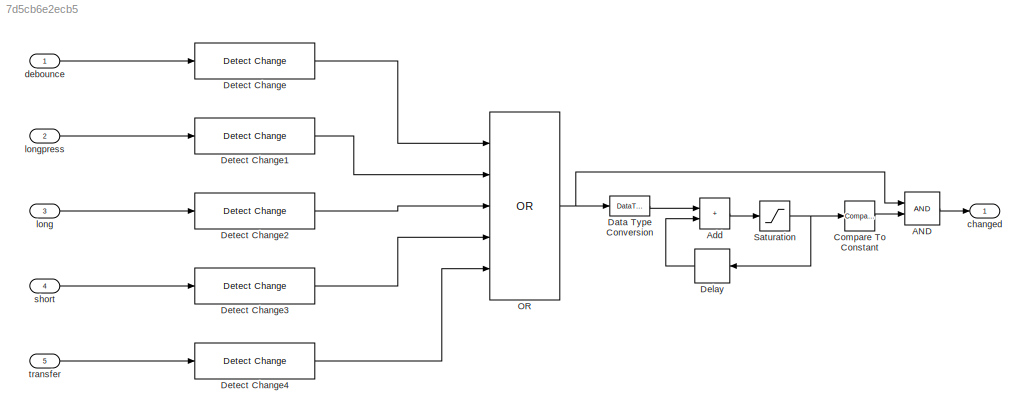
MODEL slx_7d5cb6e2ecb5
KIND model
BLOCK [Logic] AND
  AllPortsSameDT = off
  OutDataTypeStr = boolean
  Ports = [2, 1]
BLOCK [Sum] Add
  IconShape = rectangular
  Ports = [2, 1]
BLOCK [Reference] Compare To Constant  REF=simulink/Logic and Bit
Operations/Compare
To Constant
  Ports = [1, 1]
  SourceBlock = simulink/Logic and Bit\nOperations/Compare\nTo Constant
  SourceProductBaseCode = SL
  SourceType = Compare To Constant
BLOCK [DataTypeConversion] Data Type Conversion
  OutDataTypeStr = uint8
  RndMeth = Floor
  SaturateOnIntegerOverflow = off
BLOCK [Delay] Delay
  DelayLength = 1
  InitialCondition = 0
  InputPortMap = u0
  Ports = [1, 1]
BLOCK [Reference] Detect Change  REF=simulink/Logic and Bit
Operations/Detect
Change
  Ports = [1, 1]
  SourceBlock = simulink/Logic and Bit\nOperations/Detect\nChange
  SourceProductBaseCode = SL
  SourceType = Detect Change
BLOCK [Reference] Detect Change1  REF=simulink/Logic and Bit
Operations/Detect
Change
  Ports = [1, 1]
  SourceBlock = simulink/Logic and Bit\nOperations/Detect\nChange
  SourceProductBaseCode = SL
  SourceType = Detect Change
BLOCK [Reference] Detect Change2  REF=simulink/Logic and Bit
Operations/Detect
Change
  Ports = [1, 1]
  SourceBlock = simulink/Logic and Bit\nOperations/Detect\nChange
  SourceProductBaseCode = SL
  SourceType = Detect Change
BLOCK [Reference] Detect Change3  REF=simulink/Logic and Bit
Operations/Detect
Change
  Ports = [1, 1]
  SourceBlock = simulink/Logic and Bit\nOperations/Detect\nChange
  SourceProductBaseCode = SL
  SourceType = Detect Change
BLOCK [Reference] Detect Change4  REF=simulink/Logic and Bit
Operations/Detect
Change
  Ports = [1, 1]
  SourceBlock = simulink/Logic and Bit\nOperations/Detect\nChange
  SourceProductBaseCode = SL
  SourceType = Detect Change
BLOCK [Logic] OR
  AllPortsSameDT = off
  Inputs = 5
  Operator = OR
  OutDataTypeStr = boolean
  Ports = [5, 1]
BLOCK [Saturate] Saturation
  LowerLimit = 0
  UpperLimit = 100
BLOCK [Outport] changed
BLOCK [Inport] debounce
  OutDataTypeStr = int16
BLOCK [Inport] long
  OutDataTypeStr = int16
  Port = 3
BLOCK [Inport] longpress
  OutDataTypeStr = int16
  Port = 2
BLOCK [Inport] short
  OutDataTypeStr = int16
  Port = 4
BLOCK [Inport] transfer
  OutDataTypeStr = int16
  Port = 5
LINE AND:1 -> changed:1
LINE Add:1 -> Saturation:1
LINE Compare To Constant:1 -> AND:2
LINE Data Type Conversion:1 -> Add:1
LINE Delay:1 -> Add:2
LINE Detect Change1:1 -> OR:2
LINE Detect Change2:1 -> OR:3
LINE Detect Change3:1 -> OR:4
LINE Detect Change4:1 -> OR:5
LINE Detect Change:1 -> OR:1
NET OR:1 -> AND:1, Data Type Conversion:1
NET Saturation:1 -> Compare To Constant:1, Delay:1
LINE debounce:1 -> Detect Change:1
LINE long:1 -> Detect Change2:1
LINE longpress:1 -> Detect Change1:1
LINE short:1 -> Detect Change3:1
LINE transfer:1 -> Detect Change4:1
note: NET lines group one-source signal fan-out (src -> all destinations, sorted); 1:1 wires keep LINE
